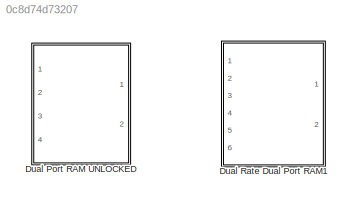
MODEL slx_0c8d74d73207
KIND library
CONFIG AbsTol = auto
CONFIG EnableMultiTasking = off
CONFIG FixedStep = auto
CONFIG MaxStep = auto
CONFIG MinStep = auto
CONFIG RelTol = 1e-3
CONFIG SampleTimeConstraint = Unconstrained
CONFIG Solver = VariableStepAuto
CONFIG SolverName = VariableStepAuto
CONFIG StartTime = 0.0
CONFIG StopTime = 10.0
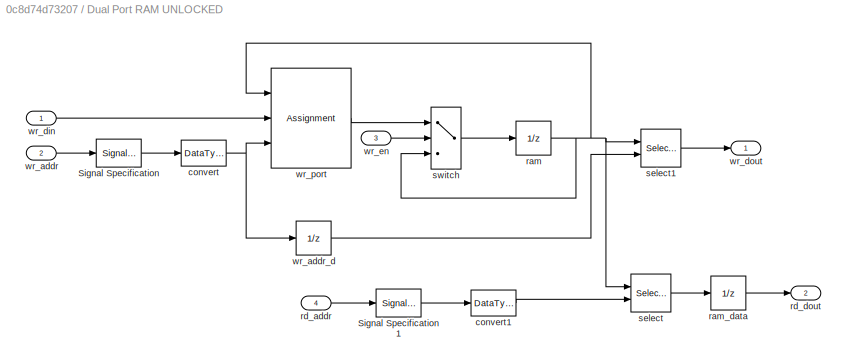
BLOCK [SubSystem] Dual Port RAM UNLOCKED
  Ports = [4, 2]
  RequestExecContextInheritance = off
BLOCK [SignalSpecification] Dual Port RAM UNLOCKED/Signal Specification
  Dimensions = 1
  OutDataTypeStr = fixdt(0,ram_size,0)
BLOCK [SignalSpecification] Dual Port RAM UNLOCKED/Signal Specification1
  Dimensions = 1
  OutDataTypeStr = fixdt(0,ram_size,0)
BLOCK [DataTypeConversion] Dual Port RAM UNLOCKED/convert
  RndMeth = Floor
  SaturateOnIntegerOverflow = off
BLOCK [DataTypeConversion] Dual Port RAM UNLOCKED/convert1
  RndMeth = Floor
  SaturateOnIntegerOverflow = off
BLOCK [UnitDelay] Dual Port RAM UNLOCKED/ram
  HasFrameUpgradeWarning = on
  SampleTime = -1
BLOCK [UnitDelay] Dual Port RAM UNLOCKED/ram_data
  HasFrameUpgradeWarning = on
  SampleTime = -1
BLOCK [Inport] Dual Port RAM UNLOCKED/rd_addr
  IconDisplay = Port number
  Port = 4
BLOCK [Outport] Dual Port RAM UNLOCKED/rd_dout
  IconDisplay = Port number
  Port = 2
BLOCK [Selector] Dual Port RAM UNLOCKED/select
  IndexMode = Zero-based
  IndexOptions = Index vector (port)
  Indices = [1 3]
  InputPortWidth = 2^ram_size
  OutputSizes = 1
  Ports = [2, 1]
BLOCK [Selector] Dual Port RAM UNLOCKED/select1
  IndexMode = Zero-based
  IndexOptions = Index vector (port)
  Indices = [1 3]
  InputPortWidth = 2^ram_size
  OutputSizes = 1
  Ports = [2, 1]
BLOCK [Switch] Dual Port RAM UNLOCKED/switch
  Criteria = u2 ~= 0
  InputSameDT = off
  SaturateOnIntegerOverflow = off
BLOCK [Inport] Dual Port RAM UNLOCKED/wr_addr
  IconDisplay = Port number
  Port = 2
BLOCK [UnitDelay] Dual Port RAM UNLOCKED/wr_addr_d
  HasFrameUpgradeWarning = on
  SampleTime = -1
BLOCK [Inport] Dual Port RAM UNLOCKED/wr_din
  IconDisplay = Port number
BLOCK [Outport] Dual Port RAM UNLOCKED/wr_dout
  IconDisplay = Port number
BLOCK [Inport] Dual Port RAM UNLOCKED/wr_en
  IconDisplay = Port number
  OutDataTypeStr = boolean
  Port = 3
BLOCK [Assignment] Dual Port RAM UNLOCKED/wr_port
  IndexMode = Zero-based
  IndexOptions = Index vector (port)
  Indices = 1
  OutputSizes = [1 1]
  Ports = [3, 1]
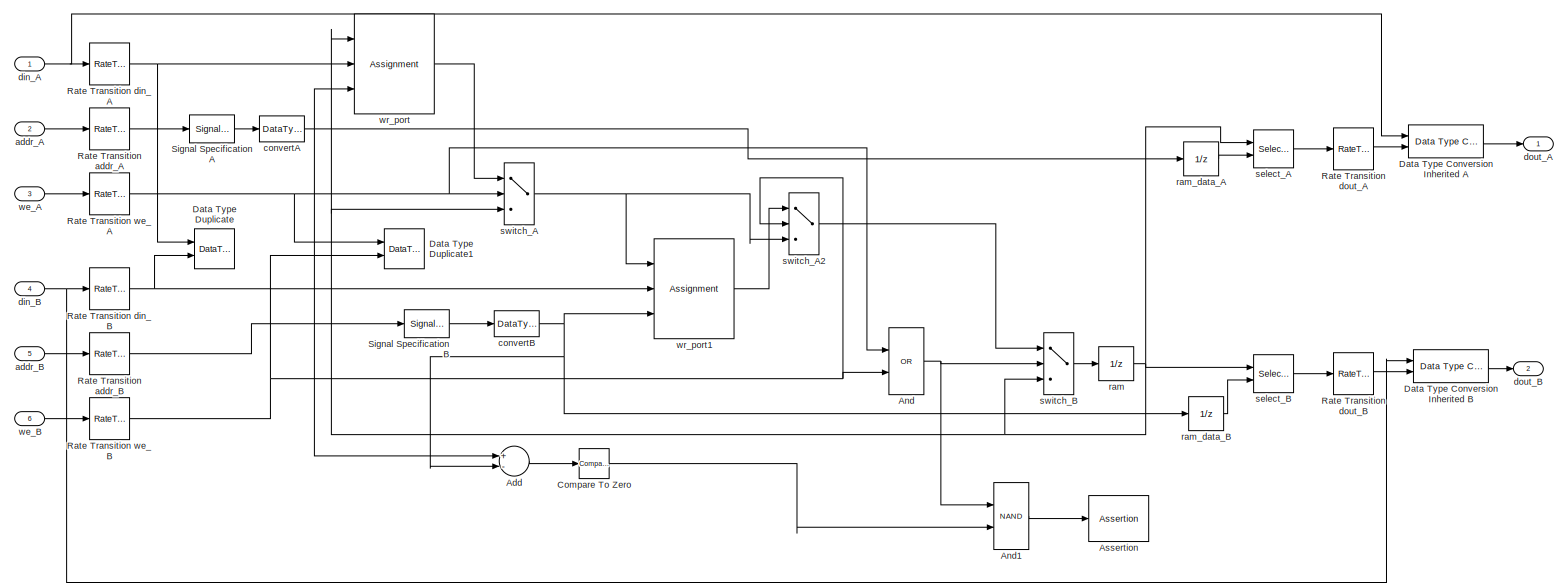
[diagram: Dual Rate Dual Port RAM1 - part 1/1, most of the canvas]
BLOCK [SubSystem] Dual Rate Dual Port RAM1
  Ports = [6, 2]
  RequestExecContextInheritance = off
BLOCK [Sum] Dual Rate Dual Port RAM1/Add
  InputSameDT = off
  Inputs = +-
  OutDataTypeStr = Inherit: Inherit via internal rule
  Ports = [2, 1]
  SaturateOnIntegerOverflow = off
BLOCK [Logic] Dual Rate Dual Port RAM1/And
  AllPortsSameDT = off
  Operator = OR
  OutDataTypeStr = boolean
  Ports = [2, 1]
BLOCK [Logic] Dual Rate Dual Port RAM1/And1
  AllPortsSameDT = off
  Operator = NAND
  OutDataTypeStr = boolean
  Ports = [2, 1]
BLOCK [Assertion] Dual Rate Dual Port RAM1/Assertion
BLOCK [Reference] Dual Rate Dual Port RAM1/Compare To Zero  REF=simulink/Logic and Bit
Operations/Compare
To Zero
  Ports = [1, 1]
  SourceBlock = simulink/Logic and Bit\nOperations/Compare\nTo Zero
  SourceProductBaseCode = SL
  SourceProductName = Simulink
  SourceType = Compare To Zero
BLOCK [Reference] Dual Rate Dual Port RAM1/Data Type Conversion Inherited A  REF=simulink/Signal
Attributes/Data Type
Conversion
Inherited
  Ports = [2, 1]
  SourceBlock = simulink/Signal\nAttributes/Data Type\nConversion\nInherited
  SourceProductBaseCode = SL
  SourceProductName = Simulink
  SourceType = Conversion Inherited
BLOCK [Reference] Dual Rate Dual Port RAM1/Data Type Conversion Inherited B  REF=simulink/Signal
Attributes/Data Type
Conversion
Inherited
  Ports = [2, 1]
  SourceBlock = simulink/Signal\nAttributes/Data Type\nConversion\nInherited
  SourceProductBaseCode = SL
  SourceProductName = Simulink
  SourceType = Conversion Inherited
BLOCK [DataTypeDuplicate] Dual Rate Dual Port RAM1/Data Type Duplicate
  Ports = [2]
BLOCK [DataTypeDuplicate] Dual Rate Dual Port RAM1/Data Type Duplicate1
  Ports = [2]
BLOCK [RateTransition] Dual Rate Dual Port RAM1/Rate Transition addr_A
  Integrity = off
BLOCK [RateTransition] Dual Rate Dual Port RAM1/Rate Transition addr_B
  Integrity = off
BLOCK [RateTransition] Dual Rate Dual Port RAM1/Rate Transition din_A
  Integrity = off
BLOCK [RateTransition] Dual Rate Dual Port RAM1/Rate Transition din_B
  Integrity = off
BLOCK [RateTransition] Dual Rate Dual Port RAM1/Rate Transition dout_A
  Integrity = off
BLOCK [RateTransition] Dual Rate Dual Port RAM1/Rate Transition dout_B
  Integrity = off
BLOCK [RateTransition] Dual Rate Dual Port RAM1/Rate Transition we_A
  Integrity = off
BLOCK [RateTransition] Dual Rate Dual Port RAM1/Rate Transition we_B
  Integrity = off
BLOCK [SignalSpecification] Dual Rate Dual Port RAM1/Signal SpecificationA
  Dimensions = 1
  OutDataTypeStr = fixdt(0,ram_size,0)
BLOCK [SignalSpecification] Dual Rate Dual Port RAM1/Signal SpecificationB
  Dimensions = 1
  OutDataTypeStr = fixdt(0,ram_size,0)
BLOCK [Inport] Dual Rate Dual Port RAM1/addr_A
  IconDisplay = Port number
  Port = 2
BLOCK [Inport] Dual Rate Dual Port RAM1/addr_B
  IconDisplay = Port number
  Port = 5
BLOCK [DataTypeConversion] Dual Rate Dual Port RAM1/convertA
  RndMeth = Floor
  SaturateOnIntegerOverflow = off
BLOCK [DataTypeConversion] Dual Rate Dual Port RAM1/convertB
  RndMeth = Floor
  SaturateOnIntegerOverflow = off
BLOCK [Inport] Dual Rate Dual Port RAM1/din_A
  IconDisplay = Port number
BLOCK [Inport] Dual Rate Dual Port RAM1/din_B
  IconDisplay = Port number
  Port = 4
BLOCK [Outport] Dual Rate Dual Port RAM1/dout_A
  IconDisplay = Port number
BLOCK [Outport] Dual Rate Dual Port RAM1/dout_B
  IconDisplay = Port number
  Port = 2
BLOCK [UnitDelay] Dual Rate Dual Port RAM1/ram
  HasFrameUpgradeWarning = on
  SampleTime = -1
BLOCK [UnitDelay] Dual Rate Dual Port RAM1/ram_data_A
  HasFrameUpgradeWarning = on
  SampleTime = -1
BLOCK [UnitDelay] Dual Rate Dual Port RAM1/ram_data_B
  HasFrameUpgradeWarning = on
  SampleTime = -1
BLOCK [Selector] Dual Rate Dual Port RAM1/select_A
  IndexMode = Zero-based
  IndexOptions = Index vector (port)
  Indices = [1 3]
  InputPortWidth = 2^ram_size
  OutputSizes = 1
  Ports = [2, 1]
BLOCK [Selector] Dual Rate Dual Port RAM1/select_B
  IndexMode = Zero-based
  IndexOptions = Index vector (port)
  Indices = [1 3]
  InputPortWidth = 2^ram_size
  OutputSizes = 1
  Ports = [2, 1]
BLOCK [Switch] Dual Rate Dual Port RAM1/switch_A
  Criteria = u2 ~= 0
  InputSameDT = off
  SaturateOnIntegerOverflow = off
BLOCK [Switch] Dual Rate Dual Port RAM1/switch_A2
  Criteria = u2 ~= 0
  InputSameDT = off
  SaturateOnIntegerOverflow = off
BLOCK [Switch] Dual Rate Dual Port RAM1/switch_B
  Criteria = u2 ~= 0
  InputSameDT = off
  SaturateOnIntegerOverflow = off
BLOCK [Inport] Dual Rate Dual Port RAM1/we_A
  IconDisplay = Port number
  OutDataTypeStr = boolean
  Port = 3
BLOCK [Inport] Dual Rate Dual Port RAM1/we_B
  IconDisplay = Port number
  OutDataTypeStr = boolean
  Port = 6
BLOCK [Assignment] Dual Rate Dual Port RAM1/wr_port
  IndexMode = Zero-based
  IndexOptions = Index vector (port)
  Indices = 1
  OutputSizes = [1 1]
  Ports = [3, 1]
BLOCK [Assignment] Dual Rate Dual Port RAM1/wr_port1
  IndexMode = Zero-based
  IndexOptions = Index vector (port)
  Indices = 1
  OutputSizes = [1 1]
  Ports = [3, 1]
LINE Dual Port RAM UNLOCKED/Signal Specification1:1 -> Dual Port RAM UNLOCKED/convert1:1
LINE Dual Port RAM UNLOCKED/Signal Specification:1 -> Dual Port RAM UNLOCKED/convert:1
LINE Dual Port RAM UNLOCKED/convert1:1 -> Dual Port RAM UNLOCKED/select:2
NET Dual Port RAM UNLOCKED/convert:1 -> Dual Port RAM UNLOCKED/wr_addr_d:1, Dual Port RAM UNLOCKED/wr_port:3
NET Dual Port RAM UNLOCKED/ram:1 -> Dual Port RAM UNLOCKED/select1:1, Dual Port RAM UNLOCKED/select:1, Dual Port RAM UNLOCKED/switch:3, Dual Port RAM UNLOCKED/wr_port:1
LINE Dual Port RAM UNLOCKED/ram_data:1 -> Dual Port RAM UNLOCKED/rd_dout:1
LINE Dual Port RAM UNLOCKED/rd_addr:1 -> Dual Port RAM UNLOCKED/Signal Specification1:1
LINE Dual Port RAM UNLOCKED/select1:1 -> Dual Port RAM UNLOCKED/wr_dout:1
LINE Dual Port RAM UNLOCKED/select:1 -> Dual Port RAM UNLOCKED/ram_data:1
LINE Dual Port RAM UNLOCKED/switch:1 -> Dual Port RAM UNLOCKED/ram:1
LINE Dual Port RAM UNLOCKED/wr_addr:1 -> Dual Port RAM UNLOCKED/Signal Specification:1
LINE Dual Port RAM UNLOCKED/wr_addr_d:1 -> Dual Port RAM UNLOCKED/select1:2
LINE Dual Port RAM UNLOCKED/wr_din:1 -> Dual Port RAM UNLOCKED/wr_port:2
LINE Dual Port RAM UNLOCKED/wr_en:1 -> Dual Port RAM UNLOCKED/switch:2
LINE Dual Port RAM UNLOCKED/wr_port:1 -> Dual Port RAM UNLOCKED/switch:1
LINE Dual Rate Dual Port RAM1/Add:1 -> Dual Rate Dual Port RAM1/Compare To Zero:1
LINE Dual Rate Dual Port RAM1/And1:1 -> Dual Rate Dual Port RAM1/Assertion:1
NET Dual Rate Dual Port RAM1/And:1 -> Dual Rate Dual Port RAM1/And1:1, Dual Rate Dual Port RAM1/switch_B:2
LINE Dual Rate Dual Port RAM1/Compare To Zero:1 -> Dual Rate Dual Port RAM1/And1:2
LINE Dual Rate Dual Port RAM1/Data Type Conversion Inherited A:1 -> Dual Rate Dual Port RAM1/dout_A:1
LINE Dual Rate Dual Port RAM1/Data Type Conversion Inherited B:1 -> Dual Rate Dual Port RAM1/dout_B:1
LINE Dual Rate Dual Port RAM1/Rate Transition addr_A:1 -> Dual Rate Dual Port RAM1/Signal SpecificationA:1
LINE Dual Rate Dual Port RAM1/Rate Transition addr_B:1 -> Dual Rate Dual Port RAM1/Signal SpecificationB:1
NET Dual Rate Dual Port RAM1/Rate Transition din_A:1 -> Dual Rate Dual Port RAM1/Data Type Duplicate:1, Dual Rate Dual Port RAM1/wr_port:2
NET Dual Rate Dual Port RAM1/Rate Transition din_B:1 -> Dual Rate Dual Port RAM1/Data Type Duplicate:2, Dual Rate Dual Port RAM1/wr_port1:2
LINE Dual Rate Dual Port RAM1/Rate Transition dout_A:1 -> Dual Rate Dual Port RAM1/Data Type Conversion Inherited A:2
LINE Dual Rate Dual Port RAM1/Rate Transition dout_B:1 -> Dual Rate Dual Port RAM1/Data Type Conversion Inherited B:2
NET Dual Rate Dual Port RAM1/Rate Transition we_A:1 -> Dual Rate Dual Port RAM1/And:1, Dual Rate Dual Port RAM1/Data Type Duplicate1:1, Dual Rate Dual Port RAM1/switch_A:2
NET Dual Rate Dual Port RAM1/Rate Transition we_B:1 -> Dual Rate Dual Port RAM1/And:2, Dual Rate Dual Port RAM1/Data Type Duplicate1:2, Dual Rate Dual Port RAM1/switch_A2:2
LINE Dual Rate Dual Port RAM1/Signal SpecificationA:1 -> Dual Rate Dual Port RAM1/convertA:1
LINE Dual Rate Dual Port RAM1/Signal SpecificationB:1 -> Dual Rate Dual Port RAM1/convertB:1
LINE Dual Rate Dual Port RAM1/addr_A:1 -> Dual Rate Dual Port RAM1/Rate Transition addr_A:1
LINE Dual Rate Dual Port RAM1/addr_B:1 -> Dual Rate Dual Port RAM1/Rate Transition addr_B:1
NET Dual Rate Dual Port RAM1/convertA:1 -> Dual Rate Dual Port RAM1/Add:1, Dual Rate Dual Port RAM1/ram_data_A:1, Dual Rate Dual Port RAM1/wr_port:3
NET Dual Rate Dual Port RAM1/convertB:1 -> Dual Rate Dual Port RAM1/Add:2, Dual Rate Dual Port RAM1/ram_data_B:1, Dual Rate Dual Port RAM1/wr_port1:3
NET Dual Rate Dual Port RAM1/din_A:1 -> Dual Rate Dual Port RAM1/Data Type Conversion Inherited A:1, Dual Rate Dual Port RAM1/Rate Transition din_A:1
NET Dual Rate Dual Port RAM1/din_B:1 -> Dual Rate Dual Port RAM1/Data Type Conversion Inherited B:1, Dual Rate Dual Port RAM1/Rate Transition din_B:1
NET Dual Rate Dual Port RAM1/ram:1 -> Dual Rate Dual Port RAM1/select_A:1, Dual Rate Dual Port RAM1/select_B:1, Dual Rate Dual Port RAM1/switch_A:3, Dual Rate Dual Port RAM1/switch_B:3, Dual Rate Dual Port RAM1/wr_port:1
LINE Dual Rate Dual Port RAM1/ram_data_A:1 -> Dual Rate Dual Port RAM1/select_A:2
LINE Dual Rate Dual Port RAM1/ram_data_B:1 -> Dual Rate Dual Port RAM1/select_B:2
LINE Dual Rate Dual Port RAM1/select_A:1 -> Dual Rate Dual Port RAM1/Rate Transition dout_A:1
LINE Dual Rate Dual Port RAM1/select_B:1 -> Dual Rate Dual Port RAM1/Rate Transition dout_B:1
LINE Dual Rate Dual Port RAM1/switch_A2:1 -> Dual Rate Dual Port RAM1/switch_B:1
NET Dual Rate Dual Port RAM1/switch_A:1 -> Dual Rate Dual Port RAM1/switch_A2:3, Dual Rate Dual Port RAM1/wr_port1:1
LINE Dual Rate Dual Port RAM1/switch_B:1 -> Dual Rate Dual Port RAM1/ram:1
LINE Dual Rate Dual Port RAM1/we_A:1 -> Dual Rate Dual Port RAM1/Rate Transition we_A:1
LINE Dual Rate Dual Port RAM1/we_B:1 -> Dual Rate Dual Port RAM1/Rate Transition we_B:1
LINE Dual Rate Dual Port RAM1/wr_port1:1 -> Dual Rate Dual Port RAM1/switch_A2:1
LINE Dual Rate Dual Port RAM1/wr_port:1 -> Dual Rate Dual Port RAM1/switch_A:1
note: NET lines group one-source signal fan-out (src -> all destinations, sorted); 1:1 wires keep LINE
